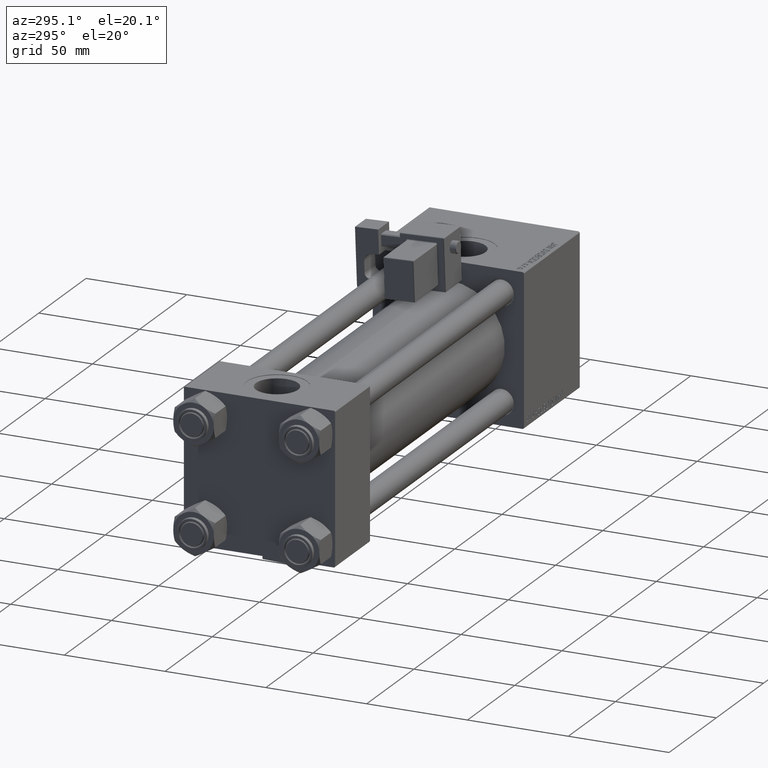
[diagram: clean part render]
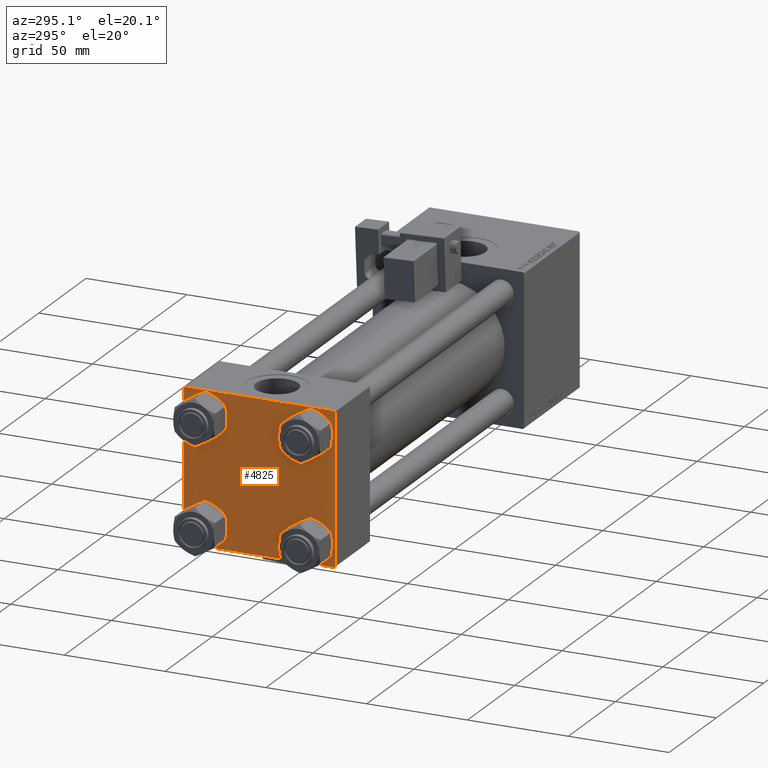
[diagram: same view with one face highlighted and labeled with its STEP entity id]
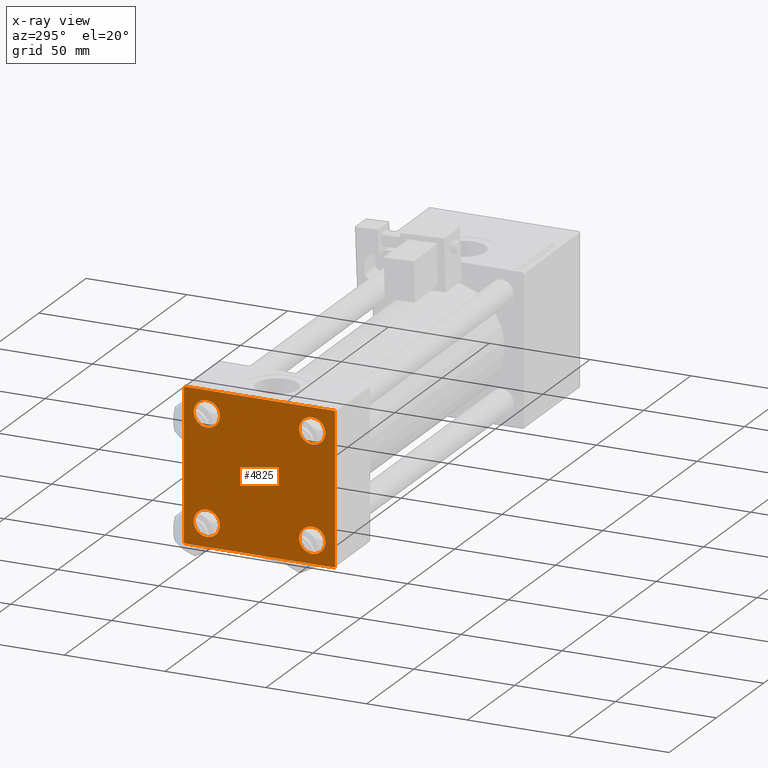
[diagram: x-ray of the same camera — body ghosted, the highlighted face saturated]
A machine part, auxiliary view. The second image highlights one B-rep face of the part: STEP entity #4825.
The next image is the same camera in x-ray: the body ghosted, the highlighted face saturated — about 0% of this face is hidden behind the body in this view.
In plain terms, the highlighted planar face has unit normal (-1, 0, 0).
Its self-contained STEP definition (entity closure, byte-faithful):
#33 = EDGE_CURVE ( 'NONE', #46100, #808, #51086, .T. ) ;
#396 = ORIENTED_EDGE ( 'NONE', *, *, #32971, .T. ) ;
#808 = VERTEX_POINT ( 'NONE', #50508 ) ;
#1121 = AXIS2_PLACEMENT_3D ( 'NONE', #32929, #17250, #12996 ) ;
#1590 = AXIS2_PLACEMENT_3D ( 'NONE', #26353, #42847, #18394 ) ;
#1710 = VECTOR ( 'NONE', #36326, 1000.000000000000000 ) ;
#2446 = CARTESIAN_POINT ( 'NONE',  ( 0.000000000000000000, 36.99999999999999289, 37.50000000000000000 ) ) ;
#2455 = DIRECTION ( 'NONE',  ( 0.000000000000000000, -0.7071067811865524577, 0.7071067811865426878 ) ) ;
#2553 = CIRCLE ( 'NONE', #29700, 6.500000000000023093 ) ;
#2663 = VECTOR ( 'NONE', #19893, 1000.000000000000000 ) ;
#2795 = VERTEX_POINT ( 'NONE', #28211 ) ;
#3478 = DIRECTION ( 'NONE',  ( 0.000000000000000000, 0.000000000000000000, 1.000000000000000000 ) ) ;
#3931 = CARTESIAN_POINT ( 'NONE',  ( 0.000000000000000000, 0.000000000000000000, 0.000000000000000000 ) ) ;
#4069 = CARTESIAN_POINT ( 'NONE',  ( 0.000000000000000000, 26.14999999999999858, 26.15000000000000213 ) ) ;
#4825 = ADVANCED_FACE ( 'NONE', ( #27335, #43546, #43808, #12175, #39305 ), #52047, .T. ) ;
#5949 = ORIENTED_EDGE ( 'NONE', *, *, #10749, .T. ) ;
#6505 = DIRECTION ( 'NONE',  ( 0.000000000000000000, 0.000000000000000000, -1.000000000000000000 ) ) ;
#6780 = VERTEX_POINT ( 'NONE', #14198 ) ;
#7309 = VERTEX_POINT ( 'NONE', #46227 ) ;
#7837 = AXIS2_PLACEMENT_3D ( 'NONE', #32229, #51917, #9296 ) ;
#8056 = EDGE_CURVE ( 'NONE', #24795, #13679, #13539, .T. ) ;
#8158 = EDGE_CURVE ( 'NONE', #52288, #35107, #24526, .T. ) ;
#8627 = EDGE_CURVE ( 'NONE', #35107, #52288, #2553, .T. ) ;
#9128 = ORIENTED_EDGE ( 'NONE', *, *, #13312, .T. ) ;
#9296 = DIRECTION ( 'NONE',  ( 0.000000000000000000, 0.000000000000000000, 1.000000000000000000 ) ) ;
#9592 = VECTOR ( 'NONE', #23889, 1000.000000000000114 ) ;
#9993 = CARTESIAN_POINT ( 'NONE',  ( 0.000000000000000000, -26.14999999999999147, 19.64999999999999147 ) ) ;
#10749 = EDGE_CURVE ( 'NONE', #808, #17468, #18956, .T. ) ;
#11683 = CARTESIAN_POINT ( 'NONE',  ( 0.000000000000000000, 37.24999999999999289, 37.24999999999999289 ) ) ;
#11896 = VERTEX_POINT ( 'NONE', #2446 ) ;
#12175 = FACE_BOUND ( 'NONE', #49572, .T. ) ;
#12201 = CARTESIAN_POINT ( 'NONE',  ( 0.000000000000000000, -26.14999999999999147, -26.15000000000000924 ) ) ;
#12285 = EDGE_CURVE ( 'NONE', #35876, #7309, #19115, .T. ) ;
#12310 = EDGE_LOOP ( 'NONE', ( #396, #12368, #5949, #50598, #35678, #35427, #25017, #23698 ) ) ;
#12368 = ORIENTED_EDGE ( 'NONE', *, *, #33, .T. ) ;
#12996 = DIRECTION ( 'NONE',  ( 0.000000000000000000, 0.000000000000000000, 1.000000000000000000 ) ) ;
#13312 = EDGE_CURVE ( 'NONE', #2795, #44415, #42456, .T. ) ;
#13457 = CIRCLE ( 'NONE', #1590, 6.500000000000015987 ) ;
#13539 = CIRCLE ( 'NONE', #46625, 6.500000000000023093 ) ;
#13660 = EDGE_CURVE ( 'NONE', #11896, #6780, #24615, .T. ) ;
#13679 = VERTEX_POINT ( 'NONE', #25141 ) ;
#13873 = CARTESIAN_POINT ( 'NONE',  ( 0.000000000000000000, -26.14999999999999147, -19.64999999999999503 ) ) ;
#14198 = CARTESIAN_POINT ( 'NONE',  ( 0.000000000000000000, -37.00000000000000711, 37.49999999999999289 ) ) ;
#14276 = CARTESIAN_POINT ( 'NONE',  ( -0.000000000000000000, -37.25000000000000000, 37.25000000000000000 ) ) ;
#15556 = VECTOR ( 'NONE', #6505, 1000.000000000000000 ) ;
#16365 = VECTOR ( 'NONE', #47083, 1000.000000000000114 ) ;
#17107 = ORIENTED_EDGE ( 'NONE', *, *, #45573, .T. ) ;
#17250 = DIRECTION ( 'NONE',  ( 1.000000000000000000, -0.000000000000000000, 0.000000000000000000 ) ) ;
#17468 = VERTEX_POINT ( 'NONE', #45682 ) ;
#17741 = CARTESIAN_POINT ( 'NONE',  ( 0.000000000000000000, -26.14999999999999147, 26.15000000000000924 ) ) ;
#18394 = DIRECTION ( 'NONE',  ( 0.000000000000000000, 0.000000000000000000, 1.000000000000000000 ) ) ;
#18397 = EDGE_CURVE ( 'NONE', #28895, #48498, #27339, .T. ) ;
#18450 = CARTESIAN_POINT ( 'NONE',  ( 0.000000000000000000, 37.49999999999999289, -37.50000000000000000 ) ) ;
#18688 = ORIENTED_EDGE ( 'NONE', *, *, #8158, .T. ) ;
#18956 = LINE ( 'NONE', #18450, #50167 ) ;
#19115 = LINE ( 'NONE', #47808, #2663 ) ;
#19401 = EDGE_CURVE ( 'NONE', #13679, #24795, #49461, .T. ) ;
#19684 = CARTESIAN_POINT ( 'NONE',  ( 0.000000000000000000, 26.14999999999999858, 26.15000000000000213 ) ) ;
#19893 = DIRECTION ( 'NONE',  ( 0.000000000000000000, 9.251858538542971581E-17, -1.000000000000000000 ) ) ;
#20631 = EDGE_LOOP ( 'NONE', ( #49187, #18688 ) ) ;
#20720 = EDGE_CURVE ( 'NONE', #44415, #2795, #24027, .T. ) ;
#20967 = EDGE_LOOP ( 'NONE', ( #41218, #17107 ) ) ;
#21975 = DIRECTION ( 'NONE',  ( 0.000000000000000000, 0.000000000000000000, 1.000000000000000000 ) ) ;
#21998 = AXIS2_PLACEMENT_3D ( 'NONE', #23926, #40152, #49170 ) ;
#22104 = CARTESIAN_POINT ( 'NONE',  ( 0.000000000000000000, -37.24999999999975842, -37.25000000000027001 ) ) ;
#22485 = VECTOR ( 'NONE', #2455, 1000.000000000000000 ) ;
#23698 = ORIENTED_EDGE ( 'NONE', *, *, #31784, .T. ) ;
#23889 = DIRECTION ( 'NONE',  ( 0.000000000000000000, 0.7071067811865474617, -0.7071067811865474617 ) ) ;
#23926 = CARTESIAN_POINT ( 'NONE',  ( 0.000000000000000000, -26.14999999999999147, 26.15000000000000924 ) ) ;
#24027 = CIRCLE ( 'NONE', #1121, 6.500000000000015987 ) ;
#24414 = DIRECTION ( 'NONE',  ( 1.000000000000000000, -0.000000000000000000, 0.000000000000000000 ) ) ;
#24526 = CIRCLE ( 'NONE', #21998, 6.500000000000023093 ) ;
#24615 = LINE ( 'NONE', #24879, #1710 ) ;
#24679 = DIRECTION ( 'NONE',  ( 0.000000000000000000, 0.000000000000000000, 1.000000000000000000 ) ) ;
#24795 = VERTEX_POINT ( 'NONE', #26115 ) ;
#24879 = CARTESIAN_POINT ( 'NONE',  ( 0.000000000000000000, 37.49999999999999289, 37.50000000000000000 ) ) ;
#25017 = ORIENTED_EDGE ( 'NONE', *, *, #13660, .F. ) ;
#25141 = CARTESIAN_POINT ( 'NONE',  ( 0.000000000000000000, 26.14999999999999858, 32.65000000000002700 ) ) ;
#26115 = CARTESIAN_POINT ( 'NONE',  ( 0.000000000000000000, 26.14999999999999858, 19.64999999999998437 ) ) ;
#26353 = CARTESIAN_POINT ( 'NONE',  ( 0.000000000000000000, 26.14999999999999858, -26.15000000000000213 ) ) ;
#26555 = AXIS2_PLACEMENT_3D ( 'NONE', #4069, #49247, #41003 ) ;
#26758 = LINE ( 'NONE', #14276, #41990 ) ;
#27335 = FACE_BOUND ( 'NONE', #20631, .T. ) ;
#27339 = CIRCLE ( 'NONE', #7837, 6.500000000000015987 ) ;
#27515 = ORIENTED_EDGE ( 'NONE', *, *, #20720, .T. ) ;
#27598 = DIRECTION ( 'NONE',  ( -0.000000000000000000, 0.000000000000000000, 1.000000000000000000 ) ) ;
#28121 = CARTESIAN_POINT ( 'NONE',  ( 0.000000000000000000, 37.49999999999999289, -36.99999999999998579 ) ) ;
#28211 = CARTESIAN_POINT ( 'NONE',  ( 0.000000000000000000, -26.14999999999999147, -32.65000000000002700 ) ) ;
#28416 = LINE ( 'NONE', #11683, #9592 ) ;
#28895 = VERTEX_POINT ( 'NONE', #36542 ) ;
#29700 = AXIS2_PLACEMENT_3D ( 'NONE', #17741, #50173, #21975 ) ;
#31438 = DIRECTION ( 'NONE',  ( 0.000000000000000000, -1.000000000000000000, -9.251858538542972814E-17 ) ) ;
#31784 = EDGE_CURVE ( 'NONE', #11896, #44507, #28416, .T. ) ;
#31837 = DIRECTION ( 'NONE',  ( -1.000000000000000000, 0.000000000000000000, -0.000000000000000000 ) ) ;
#31841 = ORIENTED_EDGE ( 'NONE', *, *, #8056, .T. ) ;
#31908 = DIRECTION ( 'NONE',  ( 1.000000000000000000, -0.000000000000000000, 0.000000000000000000 ) ) ;
#32229 = CARTESIAN_POINT ( 'NONE',  ( 0.000000000000000000, 26.14999999999999858, -26.15000000000000213 ) ) ;
#32929 = CARTESIAN_POINT ( 'NONE',  ( 0.000000000000000000, -26.14999999999999147, -26.15000000000000924 ) ) ;
#32971 = EDGE_CURVE ( 'NONE', #44507, #46100, #36445, .T. ) ;
#35107 = VERTEX_POINT ( 'NONE', #41311 ) ;
#35427 = ORIENTED_EDGE ( 'NONE', *, *, #35954, .T. ) ;
#35678 = ORIENTED_EDGE ( 'NONE', *, *, #12285, .F. ) ;
#35876 = VERTEX_POINT ( 'NONE', #41911 ) ;
#35954 = EDGE_CURVE ( 'NONE', #35876, #6780, #26758, .T. ) ;
#36326 = DIRECTION ( 'NONE',  ( 0.000000000000000000, -1.000000000000000000, -9.251858538542971581E-17 ) ) ;
#36445 = LINE ( 'NONE', #36706, #15556 ) ;
#36542 = CARTESIAN_POINT ( 'NONE',  ( 0.000000000000000000, 26.14999999999999858, -19.64999999999998792 ) ) ;
#36706 = CARTESIAN_POINT ( 'NONE',  ( 0.000000000000000000, 37.49999999999999289, 37.50000000000000000 ) ) ;
#37236 = EDGE_CURVE ( 'NONE', #17468, #7309, #43114, .T. ) ;
#39108 = CARTESIAN_POINT ( 'NONE',  ( 0.000000000000000000, 37.24999999999998579, -37.24999999999998579 ) ) ;
#39305 = FACE_OUTER_BOUND ( 'NONE', #12310, .T. ) ;
#39628 = CARTESIAN_POINT ( 'NONE',  ( 0.000000000000000000, 37.49999999999999289, 37.00000000000000000 ) ) ;
#40152 = DIRECTION ( 'NONE',  ( 1.000000000000000000, -0.000000000000000000, 0.000000000000000000 ) ) ;
#40552 = AXIS2_PLACEMENT_3D ( 'NONE', #3931, #31837, #27598 ) ;
#41003 = DIRECTION ( 'NONE',  ( 0.000000000000000000, 0.000000000000000000, 1.000000000000000000 ) ) ;
#41218 = ORIENTED_EDGE ( 'NONE', *, *, #18397, .T. ) ;
#41311 = CARTESIAN_POINT ( 'NONE',  ( 0.000000000000000000, -26.14999999999999147, 32.65000000000003411 ) ) ;
#41911 = CARTESIAN_POINT ( 'NONE',  ( 0.000000000000000000, -37.50000000000000711, 36.99999999999999289 ) ) ;
#41990 = VECTOR ( 'NONE', #42976, 1000.000000000000114 ) ;
#42456 = CIRCLE ( 'NONE', #51780, 6.500000000000015987 ) ;
#42847 = DIRECTION ( 'NONE',  ( 1.000000000000000000, -0.000000000000000000, 0.000000000000000000 ) ) ;
#42976 = DIRECTION ( 'NONE',  ( -0.000000000000000000, 0.7071067811865474617, 0.7071067811865474617 ) ) ;
#43114 = LINE ( 'NONE', #22104, #22485 ) ;
#43546 = FACE_BOUND ( 'NONE', #50138, .T. ) ;
#43808 = FACE_BOUND ( 'NONE', #20967, .T. ) ;
#44415 = VERTEX_POINT ( 'NONE', #13873 ) ;
#44507 = VERTEX_POINT ( 'NONE', #39628 ) ;
#44856 = ORIENTED_EDGE ( 'NONE', *, *, #19401, .T. ) ;
#45573 = EDGE_CURVE ( 'NONE', #48498, #28895, #13457, .T. ) ;
#45682 = CARTESIAN_POINT ( 'NONE',  ( 0.000000000000000000, -37.00000000000002132, -37.50000000000000711 ) ) ;
#46100 = VERTEX_POINT ( 'NONE', #28121 ) ;
#46227 = CARTESIAN_POINT ( 'NONE',  ( 0.000000000000000000, -37.50000000000000000, -37.00000000000003553 ) ) ;
#46625 = AXIS2_PLACEMENT_3D ( 'NONE', #19684, #31908, #3478 ) ;
#47083 = DIRECTION ( 'NONE',  ( -0.000000000000000000, -0.7071067811865474617, -0.7071067811865474617 ) ) ;
#47808 = CARTESIAN_POINT ( 'NONE',  ( 0.000000000000000000, -37.50000000000000711, 37.49999999999999289 ) ) ;
#48498 = VERTEX_POINT ( 'NONE', #48924 ) ;
#48924 = CARTESIAN_POINT ( 'NONE',  ( 0.000000000000000000, 26.14999999999999858, -32.65000000000001990 ) ) ;
#49170 = DIRECTION ( 'NONE',  ( 0.000000000000000000, 0.000000000000000000, 1.000000000000000000 ) ) ;
#49187 = ORIENTED_EDGE ( 'NONE', *, *, #8627, .T. ) ;
#49247 = DIRECTION ( 'NONE',  ( 1.000000000000000000, -0.000000000000000000, 0.000000000000000000 ) ) ;
#49461 = CIRCLE ( 'NONE', #26555, 6.500000000000023093 ) ;
#49572 = EDGE_LOOP ( 'NONE', ( #44856, #31841 ) ) ;
#50138 = EDGE_LOOP ( 'NONE', ( #27515, #9128 ) ) ;
#50167 = VECTOR ( 'NONE', #31438, 1000.000000000000000 ) ;
#50173 = DIRECTION ( 'NONE',  ( 1.000000000000000000, -0.000000000000000000, 0.000000000000000000 ) ) ;
#50508 = CARTESIAN_POINT ( 'NONE',  ( 0.000000000000000000, 36.99999999999997868, -37.50000000000000000 ) ) ;
#50598 = ORIENTED_EDGE ( 'NONE', *, *, #37236, .T. ) ;
#51086 = LINE ( 'NONE', #39108, #16365 ) ;
#51780 = AXIS2_PLACEMENT_3D ( 'NONE', #12201, #24414, #24679 ) ;
#51917 = DIRECTION ( 'NONE',  ( 1.000000000000000000, -0.000000000000000000, 0.000000000000000000 ) ) ;
#52047 = PLANE ( 'NONE',  #40552 ) ;
#52288 = VERTEX_POINT ( 'NONE', #9993 ) ;